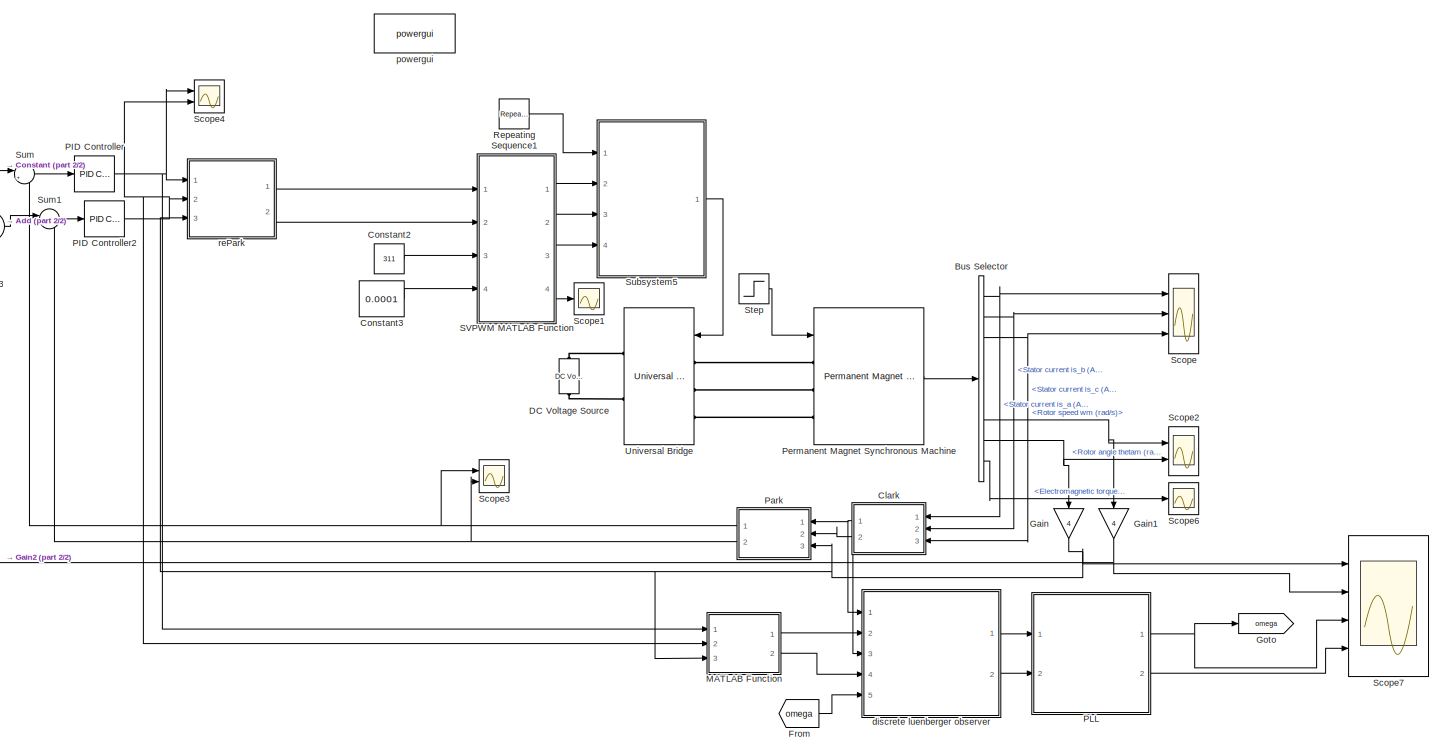
[diagram: root canvas - part 1/2, most of the canvas]
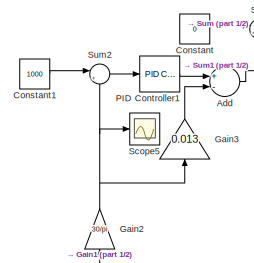
[diagram: root canvas - part 2/2, middle left region]
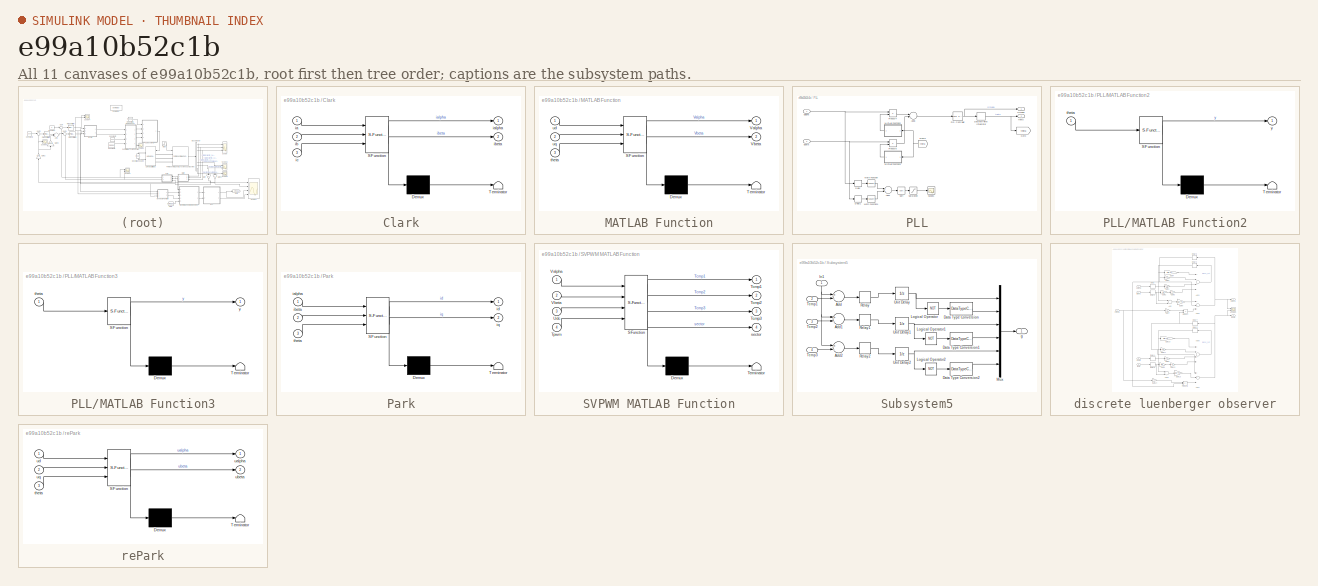
[diagram: thumbnail index - all 11 canvases of the model, root first then tree order]
MODEL slx_e99a10b52c1b
KIND model
CONFIG AbsTol = auto
CONFIG EnableMultiTasking = off
CONFIG FixedStep = auto
CONFIG InitFcn = G1=-4000;\nG2=14000;\nTs=1e-6;\nL=0.97e-3;\nR=0.958;
CONFIG MaxStep = auto
CONFIG MinStep = auto
CONFIG RelTol = 1e-4
CONFIG SampleTimeConstraint = Unconstrained
CONFIG Solver = ode23tb
CONFIG SolverName = ode23tb
CONFIG StartTime = 0.0
CONFIG StopTime = 1
BLOCK [Sum] Add
  InputSameDT = off
  Inputs = +-
  OutDataTypeStr = Inherit: Inherit via internal rule
  Ports = [2, 1]
  SaturateOnIntegerOverflow = off
BLOCK [BusSelector] Bus Selector
  OutputAsBus = off
  OutputSignals = Stator current is_a (A),Stator current is_b (A),Stator current is_c (A),Hall effect signal h_a,Hall effect signal h_b,Hall effect signal h_c,Rotor speed wm (rad/s),Rotor angle thetam (rad),Electromagnetic torque Te (N*m)
  Ports = [1, 9]
BLOCK [SubSystem] Clark
  ErrorFcn = Stateflow.Translate.translate
  PermitHierarchicalResolution = ExplicitOnly
  Ports = [3, 2]
  RequestExecContextInheritance = off
  SFBlockType = MATLAB Function
  TreatAsAtomicUnit = on
BLOCK [Demux] Clark/ Demux 
  DisplayOption = bar
  Outputs = 1
  Ports = [1, 1]
BLOCK [S-Function] Clark/ SFunction 
  EnableBusSupport = on
  FunctionName = sf_sfun
  PortCounts = [3 3]
  Ports = [3, 3]
  SFcnIsStateOwnerBlock = off
  SFunctionDeploymentMode = off
  Tag = Stateflow S-Function Luenberger_obsever2018b 5
BLOCK [Terminator] Clark/ Terminator 
BLOCK [Inport] Clark/ia
  IconDisplay = Port number
BLOCK [Outport] Clark/ialpha
  IconDisplay = Port number
  VectorParamsAs1DForOutWhenUnconnected = on
BLOCK [Inport] Clark/ib
  IconDisplay = Port number
  Port = 2
BLOCK [Outport] Clark/ibeta
  IconDisplay = Port number
  Port = 2
  VectorParamsAs1DForOutWhenUnconnected = on
BLOCK [Inport] Clark/ic
  IconDisplay = Port number
  Port = 3
BLOCK [Constant] Constant
  OutDataTypeStr = single
  Value = 0
BLOCK [Constant] Constant1
  OutDataTypeStr = single
  Value = 1000
BLOCK [Constant] Constant2
  OutDataTypeStr = single
  Value = 311
BLOCK [Constant] Constant3
  OutDataTypeStr = single
  Value = 0.0001
BLOCK [Reference] DC Voltage Source  REF=powerlib/Electrical
Sources/DC Voltage Source
  Ports = [0, 0, 0, 0, 0, 1, 1]
  SourceBlock = powerlib/Electrical\nSources/DC Voltage Source
  SourceProductBaseCode = PS
  SourceType = DC Voltage Source
BLOCK [From] From
  GotoTag = omega
BLOCK [Gain] Gain
  Gain = 4
  OutDataTypeStr = Inherit: Inherit via internal rule
  ParamDataTypeStr = Inherit: Inherit via internal rule
  SaturateOnIntegerOverflow = off
BLOCK [Gain] Gain1
  Gain = 4
  OutDataTypeStr = Inherit: Inherit via internal rule
  ParamDataTypeStr = Inherit: Inherit via internal rule
  SaturateOnIntegerOverflow = off
BLOCK [Gain] Gain2
  Gain = 30/pi
  OutDataTypeStr = Inherit: Inherit via internal rule
  ParamDataTypeStr = Inherit: Inherit via internal rule
  SaturateOnIntegerOverflow = off
BLOCK [Gain] Gain3
  Gain = 0.013
  OutDataTypeStr = Inherit: Inherit via internal rule
  ParamDataTypeStr = Inherit: Inherit via internal rule
  SaturateOnIntegerOverflow = off
BLOCK [Goto] Goto
  GotoTag = omega
BLOCK [SubSystem] MATLAB Function
  ErrorFcn = Stateflow.Translate.translate
  PermitHierarchicalResolution = ExplicitOnly
  Ports = [3, 2]
  RequestExecContextInheritance = off
  SFBlockType = MATLAB Function
  TreatAsAtomicUnit = on
BLOCK [Demux] MATLAB Function/ Demux 
  DisplayOption = bar
  Outputs = 1
  Ports = [1, 1]
BLOCK [S-Function] MATLAB Function/ SFunction 
  EnableBusSupport = on
  FunctionName = sf_sfun
  PortCounts = [3 3]
  Ports = [3, 3]
  SFcnIsStateOwnerBlock = off
  SFunctionDeploymentMode = off
  Tag = Stateflow S-Function Luenberger_obsever2018b 2
BLOCK [Terminator] MATLAB Function/ Terminator 
BLOCK [Outport] MATLAB Function/Valpha
  IconDisplay = Port number
  VectorParamsAs1DForOutWhenUnconnected = on
BLOCK [Outport] MATLAB Function/Vbeta
  IconDisplay = Port number
  Port = 2
  VectorParamsAs1DForOutWhenUnconnected = on
BLOCK [Inport] MATLAB Function/theta
  IconDisplay = Port number
  Port = 3
BLOCK [Inport] MATLAB Function/ud
  IconDisplay = Port number
BLOCK [Inport] MATLAB Function/uq
  IconDisplay = Port number
  Port = 2
BLOCK [Reference] PID Controller  REF=simulink/Continuous/PID Controller
  Ports = [1, 1]
  SourceBlock = simulink/Continuous/PID Controller
  SourceProductBaseCode = SL
  SourceType = PID 1dof
BLOCK [Reference] PID Controller1  REF=simulink/Continuous/PID Controller
  Ports = [1, 1]
  SourceBlock = simulink/Continuous/PID Controller
  SourceProductBaseCode = SL
  SourceType = PID 1dof
BLOCK [Reference] PID Controller2  REF=simulink/Continuous/PID Controller
  Ports = [1, 1]
  SourceBlock = simulink/Continuous/PID Controller
  SourceProductBaseCode = SL
  SourceType = PID 1dof
BLOCK [SubSystem] PLL
  Ports = [2, 2]
  RequestExecContextInheritance = off
BLOCK [Sum] PLL/Add4
  InputSameDT = off
  OutDataTypeStr = single
  Ports = [2, 1]
  SaturateOnIntegerOverflow = off
BLOCK [Sum] PLL/Add8
  InputSameDT = off
  Inputs = -+
  OutDataTypeStr = Inherit: Inherit via internal rule
  Ports = [2, 1]
  SaturateOnIntegerOverflow = off
BLOCK [Delay] PLL/Delay
  DelayLength = 1
  InputPortMap = u0
  InputProcessing = Columns as channels (frame based)
  Ports = [1, 1]
BLOCK [Delay] PLL/Delay1
  DelayLength = 1
  InputPortMap = u0
  InputProcessing = Columns as channels (frame based)
  Ports = [1, 1]
BLOCK [DiscreteIntegrator] PLL/Discrete-Time Integrator
  ICPrevOutput = DiscIntNeverNeededParam
  ICPrevScaledInput = DiscIntNeverNeededParam
  InitialConditionSetting = Auto
  Ports = [1, 1]
  SampleTime = -1
BLOCK [Inport] PLL/Ealpha
  IconDisplay = Port number
BLOCK [Inport] PLL/Ebeta
  IconDisplay = Port number
  Port = 2
BLOCK [From] PLL/From2
  GotoTag = theta
BLOCK [Goto] PLL/Goto
  GotoTag = theta
BLOCK [SubSystem] PLL/MATLAB Function2
  ErrorFcn = Stateflow.Translate.translate
  PermitHierarchicalResolution = ExplicitOnly
  Ports = [1, 1]
  RequestExecContextInheritance = off
  SFBlockType = MATLAB Function
  TreatAsAtomicUnit = on
BLOCK [Demux] PLL/MATLAB Function2/ Demux 
  DisplayOption = bar
  Outputs = 1
  Ports = [1, 1]
BLOCK [S-Function] PLL/MATLAB Function2/ SFunction 
  EnableBusSupport = on
  FunctionName = sf_sfun
  PortCounts = [1 2]
  Ports = [1, 2]
  SFcnIsStateOwnerBlock = off
  SFunctionDeploymentMode = off
  Tag = Stateflow S-Function Luenberger_obsever2018b 3
BLOCK [Terminator] PLL/MATLAB Function2/ Terminator 
BLOCK [Inport] PLL/MATLAB Function2/theta
  IconDisplay = Port number
BLOCK [Outport] PLL/MATLAB Function2/y
  IconDisplay = Port number
  VectorParamsAs1DForOutWhenUnconnected = on
BLOCK [SubSystem] PLL/MATLAB Function3
  ErrorFcn = Stateflow.Translate.translate
  PermitHierarchicalResolution = ExplicitOnly
  Ports = [1, 1]
  RequestExecContextInheritance = off
  SFBlockType = MATLAB Function
  TreatAsAtomicUnit = on
BLOCK [Demux] PLL/MATLAB Function3/ Demux 
  DisplayOption = bar
  Outputs = 1
  Ports = [1, 1]
BLOCK [S-Function] PLL/MATLAB Function3/ SFunction 
  EnableBusSupport = on
  FunctionName = sf_sfun
  PortCounts = [1 2]
  Ports = [1, 2]
  SFcnIsStateOwnerBlock = off
  SFunctionDeploymentMode = off
  Tag = Stateflow S-Function Luenberger_obsever2018b 4
BLOCK [Terminator] PLL/MATLAB Function3/ Terminator 
BLOCK [Inport] PLL/MATLAB Function3/theta
  IconDisplay = Port number
BLOCK [Outport] PLL/MATLAB Function3/y
  IconDisplay = Port number
  VectorParamsAs1DForOutWhenUnconnected = on
BLOCK [Math] PLL/Math Function
  Operator = square
  Ports = [1, 1]
BLOCK [Math] PLL/Math Function1
  Operator = square
  Ports = [1, 1]
BLOCK [Outport] PLL/Omega
  IconDisplay = Port number
  VectorParamsAs1DForOutWhenUnconnected = on
BLOCK [Reference] PLL/PID Controller  REF=simulink/Continuous/PID Controller
  Ports = [1, 1]
  SourceBlock = simulink/Continuous/PID Controller
  SourceProductBaseCode = SL
  SourceType = PID 1dof
BLOCK [Product] PLL/Product4
  InputSameDT = off
  OutDataTypeStr = Inherit: Inherit via internal rule
  Ports = [2, 1]
  RndMeth = Floor
  SaturateOnIntegerOverflow = off
BLOCK [Product] PLL/Product5
  InputSameDT = off
  OutDataTypeStr = Inherit: Inherit via internal rule
  Ports = [2, 1]
  RndMeth = Floor
  SaturateOnIntegerOverflow = off
BLOCK [Saturate] PLL/Saturation
  InputPortMap = u0
  LowerLimit = 0.000001
  OutDataTypeStr = Inherit: Inherit via back propagation
  Ports = [1, 1]
  UpperLimit = 24
BLOCK [Scope] PLL/Scope1
  Floating = off
  NumInputPorts = 1
  Ports = [1]
  ScopeSpecificationString = Simulink.scopes.TimeScopeBlockCfg('CurrentConfiguration', extmgr.ConfigurationSet(extmgr.Configuration('Core','General UI',true),extmgr.Configuration('Core','Source UI',true),extmgr.Configuration('Sources','WiredSimulink',true,'DataLoggingVariableName','ScopeData1'),extmgr.Configuration('Visuals','Time Domain',true,'SerializedDisplays',{struct('MinYLimReal','-0.53696','MaxYLimReal','4.83267','YLab...<+1423ch>
BLOCK [Sqrt] PLL/Sqrt
  OutDataTypeStr = single
BLOCK [Outport] PLL/theta
  IconDisplay = Port number
  Port = 2
  VectorParamsAs1DForOutWhenUnconnected = on
BLOCK [SubSystem] Park
  ErrorFcn = Stateflow.Translate.translate
  PermitHierarchicalResolution = ExplicitOnly
  Ports = [3, 2]
  RequestExecContextInheritance = off
  SFBlockType = MATLAB Function
  TreatAsAtomicUnit = on
BLOCK [Demux] Park/ Demux 
  DisplayOption = bar
  Outputs = 1
  Ports = [1, 1]
BLOCK [S-Function] Park/ SFunction 
  EnableBusSupport = on
  FunctionName = sf_sfun
  PortCounts = [3 3]
  Ports = [3, 3]
  SFcnIsStateOwnerBlock = off
  SFunctionDeploymentMode = off
  Tag = Stateflow S-Function Luenberger_obsever2018b 1
BLOCK [Terminator] Park/ Terminator 
BLOCK [Inport] Park/ialpha
  IconDisplay = Port number
BLOCK [Inport] Park/ibeta
  IconDisplay = Port number
  Port = 2
BLOCK [Outport] Park/id
  IconDisplay = Port number
  VectorParamsAs1DForOutWhenUnconnected = on
BLOCK [Outport] Park/iq
  IconDisplay = Port number
  Port = 2
  VectorParamsAs1DForOutWhenUnconnected = on
BLOCK [Inport] Park/theta
  IconDisplay = Port number
  Port = 3
BLOCK [Reference] Permanent Magnet Synchronous Machine  REF=powerlib/Machines/Permanent Magnet
Synchronous Machine
  Ports = [1, 1, 0, 0, 0, 3]
  SourceBlock = powerlib/Machines/Permanent Magnet\nSynchronous Machine
  SourceProductBaseCode = PS
  SourceType = Permanent Magnet Synchronous Machine
BLOCK [Reference] Repeating Sequence1  REF=simulink/Sources/Repeating
Sequence
  Ports = [0, 1]
  SourceBlock = simulink/Sources/Repeating\nSequence
  SourceProductBaseCode = SL
  SourceType = Repeating table
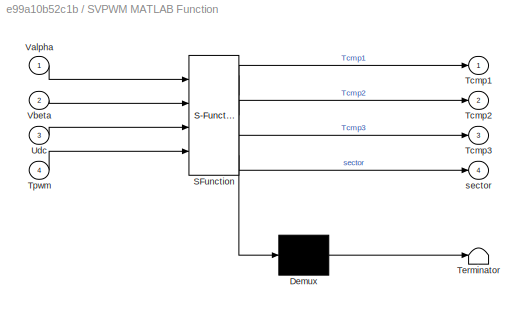
BLOCK [SubSystem] SVPWM MATLAB Function
  ErrorFcn = Stateflow.Translate.translate
  PermitHierarchicalResolution = ExplicitOnly
  Ports = [4, 4]
  RequestExecContextInheritance = off
  SFBlockType = MATLAB Function
  TreatAsAtomicUnit = on
BLOCK [Demux] SVPWM MATLAB Function/ Demux 
  DisplayOption = bar
  Outputs = 1
  Ports = [1, 1]
BLOCK [S-Function] SVPWM MATLAB Function/ SFunction 
  EnableBusSupport = on
  FunctionName = sf_sfun
  PortCounts = [4 5]
  Ports = [4, 5]
  SFcnIsStateOwnerBlock = off
  SFunctionDeploymentMode = off
  Tag = Stateflow S-Function Luenberger_obsever2018b 8
BLOCK [Terminator] SVPWM MATLAB Function/ Terminator 
BLOCK [Outport] SVPWM MATLAB Function/Tcmp1
  IconDisplay = Port number
BLOCK [Outport] SVPWM MATLAB Function/Tcmp2
  IconDisplay = Port number
  Port = 2
BLOCK [Outport] SVPWM MATLAB Function/Tcmp3
  IconDisplay = Port number
  Port = 3
BLOCK [Inport] SVPWM MATLAB Function/Tpwm
  IconDisplay = Port number
  Port = 4
BLOCK [Inport] SVPWM MATLAB Function/Udc
  IconDisplay = Port number
  Port = 3
BLOCK [Inport] SVPWM MATLAB Function/Valpha
  IconDisplay = Port number
BLOCK [Inport] SVPWM MATLAB Function/Vbeta
  IconDisplay = Port number
  Port = 2
BLOCK [Outport] SVPWM MATLAB Function/sector
  IconDisplay = Port number
  Port = 4
BLOCK [Scope] Scope
  Floating = off
  NumInputPorts = 3
  Ports = [3]
  ScopeSpecificationString = Simulink.scopes.TimeScopeBlockCfg('CurrentConfiguration', extmgr.ConfigurationSet(extmgr.Configuration('Core','General UI',true),extmgr.Configuration('Core','Source UI',true),extmgr.Configuration('Sources','WiredSimulink',true),extmgr.Configuration('Visuals','Time Domain',true,'SerializedDisplays',{struct('MinYLimReal','-26.45273','MaxYLimReal','25.61554','YLabelReal','','MinYLimMag','0.00000','Ma...<+1507ch>
BLOCK [Scope] Scope1
  Floating = off
  NumInputPorts = 1
  Ports = [1]
  ScopeSpecificationString = Simulink.scopes.TimeScopeBlockCfg('CurrentConfiguration', extmgr.ConfigurationSet(extmgr.Configuration('Core','General UI',true),extmgr.Configuration('Core','Source UI',true),extmgr.Configuration('Sources','WiredSimulink',true,'DataLoggingVariableName','ScopeData1'),extmgr.Configuration('Visuals','Time Domain',true,'SerializedDisplays',{struct('MinYLimReal','0.375','MaxYLimReal','6.625','YLabelRea...<+1444ch>
BLOCK [Scope] Scope2
  Floating = off
  NumInputPorts = 2
  Ports = [2]
  ScopeSpecificationString = Simulink.scopes.TimeScopeBlockCfg('CurrentConfiguration', extmgr.ConfigurationSet(extmgr.Configuration('Core','General UI',true),extmgr.Configuration('Core','Source UI',true),extmgr.Configuration('Sources','WiredSimulink',true,'DataLoggingVariableName','ScopeData2'),extmgr.Configuration('Visuals','Time Domain',true,'SerializedDisplays',{struct('MinYLimReal','-3.21386','MaxYLimReal','28.92476','YLa...<+1496ch>
BLOCK [Scope] Scope3
  Floating = off
  NumInputPorts = 2
  Ports = [2]
  ScopeSpecificationString = Simulink.scopes.TimeScopeBlockCfg('CurrentConfiguration', extmgr.ConfigurationSet(extmgr.Configuration('Core','General UI',true),extmgr.Configuration('Core','Source UI',true),extmgr.Configuration('Sources','WiredSimulink',true,'DataLoggingVariableName','ScopeData3'),extmgr.Configuration('Visuals','Time Domain',true,'SerializedDisplays',{struct('MinYLimReal','-7.87604','MaxYLimReal','25.93962','YLa...<+1409ch>
BLOCK [Scope] Scope4
  Floating = off
  NumInputPorts = 2
  Ports = [2]
  ScopeSpecificationString = Simulink.scopes.TimeScopeBlockCfg('CurrentConfiguration', extmgr.ConfigurationSet(extmgr.Configuration('Core','General UI',true),extmgr.Configuration('Core','Source UI',true),extmgr.Configuration('Sources','WiredSimulink',true,'DataLoggingVariableName','ScopeData4'),extmgr.Configuration('Visuals','Time Domain',true,'SerializedDisplays',{struct('MinYLimReal','-7.25949','MaxYLimReal','44.00908','YLa...<+1424ch>
BLOCK [Scope] Scope5
  Floating = off
  NumInputPorts = 1
  Ports = [1]
  ScopeSpecificationString = Simulink.scopes.TimeScopeBlockCfg('CurrentConfiguration', extmgr.ConfigurationSet(extmgr.Configuration('Core','General UI',true,'FigureColor',[1 1 1]),extmgr.Configuration('Core','Source UI',true),extmgr.Configuration('Sources','WiredSimulink',true,'DataLoggingVariableName','ScopeData5'),extmgr.Configuration('Visuals','Time Domain',true,'SerializedDisplays',{struct('MinYLimReal','-122.76049','MaxY...<+1601ch>
BLOCK [Scope] Scope6
  Floating = off
  NumInputPorts = 1
  Ports = [1]
  ScopeSpecificationString = Simulink.scopes.TimeScopeBlockCfg('CurrentConfiguration', extmgr.ConfigurationSet(extmgr.Configuration('Core','General UI',true),extmgr.Configuration('Core','Source UI',true),extmgr.Configuration('Sources','WiredSimulink',true,'DataLoggingVariableName','ScopeData6'),extmgr.Configuration('Visuals','Time Domain',true,'SerializedDisplays',{struct('MinYLimReal','-8.63372','MaxYLimReal','28.43501','YLa...<+1425ch>
BLOCK [Scope] Scope7
  Floating = off
  NumInputPorts = 4
  Ports = [4]
  ScopeSpecificationString = Simulink.scopes.TimeScopeBlockCfg('CurrentConfiguration', extmgr.ConfigurationSet(extmgr.Configuration('Core','General UI',true,'FigureColor',[1 1 1]),extmgr.Configuration('Core','Source UI',true),extmgr.Configuration('Sources','WiredSimulink',true,'DataLoggingVariableName','ScopeData1'),extmgr.Configuration('Visuals','Time Domain',true,'SerializedDisplays',{struct('MinYLimReal','-38.47417','MaxYL...<+1915ch>
BLOCK [Step] Step
  After = 20
  SampleTime = 0
  Time = 0.2
BLOCK [SubSystem] Subsystem5
  Ports = [4, 1]
  RequestExecContextInheritance = off
BLOCK [Sum] Subsystem5/Add
  InputSameDT = off
  Inputs = +-
  OutDataTypeStr = Inherit: Inherit via internal rule
  Ports = [2, 1]
  SaturateOnIntegerOverflow = off
BLOCK [Sum] Subsystem5/Add1
  InputSameDT = off
  Inputs = +-
  OutDataTypeStr = Inherit: Inherit via internal rule
  Ports = [2, 1]
  SaturateOnIntegerOverflow = off
BLOCK [Sum] Subsystem5/Add2
  InputSameDT = off
  Inputs = +-
  OutDataTypeStr = Inherit: Inherit via internal rule
  Ports = [2, 1]
  SaturateOnIntegerOverflow = off
BLOCK [DataTypeConversion] Subsystem5/Data Type Conversion
  OutDataTypeStr = double
  RndMeth = Floor
  SaturateOnIntegerOverflow = off
BLOCK [DataTypeConversion] Subsystem5/Data Type Conversion1
  OutDataTypeStr = double
  RndMeth = Floor
  SaturateOnIntegerOverflow = off
BLOCK [DataTypeConversion] Subsystem5/Data Type Conversion2
  OutDataTypeStr = double
  RndMeth = Floor
  SaturateOnIntegerOverflow = off
BLOCK [Inport] Subsystem5/In1
  IconDisplay = Port number
BLOCK [Logic] Subsystem5/Logical Operator
  AllPortsSameDT = off
  Operator = NOT
  OutDataTypeStr = boolean
  Ports = [1, 1]
BLOCK [Logic] Subsystem5/Logical Operator1
  AllPortsSameDT = off
  Operator = NOT
  OutDataTypeStr = boolean
  Ports = [1, 1]
BLOCK [Logic] Subsystem5/Logical Operator2
  AllPortsSameDT = off
  Operator = NOT
  OutDataTypeStr = boolean
  Ports = [1, 1]
BLOCK [Mux] Subsystem5/Mux
  DisplayOption = bar
  Inputs = 6
  Ports = [6, 1]
BLOCK [Relay] Subsystem5/Relay
  InputProcessing = Elements as channels (sample based)
  OffSwitchValue = -eps
BLOCK [Relay] Subsystem5/Relay1
  InputProcessing = Elements as channels (sample based)
  OffSwitchValue = -eps
BLOCK [Relay] Subsystem5/Relay2
  InputProcessing = Elements as channels (sample based)
  OffSwitchValue = -eps
BLOCK [Inport] Subsystem5/Tcmp1
  IconDisplay = Port number
  Port = 2
BLOCK [Inport] Subsystem5/Tcmp2
  IconDisplay = Port number
  Port = 3
BLOCK [Inport] Subsystem5/Tcmp3
  IconDisplay = Port number
  Port = 4
BLOCK [UnitDelay] Subsystem5/Unit Delay
  InputProcessing = Elements as channels (sample based)
  SampleTime = -1
BLOCK [UnitDelay] Subsystem5/Unit Delay1
  InputProcessing = Elements as channels (sample based)
  SampleTime = -1
BLOCK [UnitDelay] Subsystem5/Unit Delay2
  InputProcessing = Elements as channels (sample based)
  SampleTime = -1
BLOCK [Outport] Subsystem5/g
  IconDisplay = Port number
BLOCK [Sum] Sum
  IconShape = round
  InputSameDT = off
  Inputs = |+-
  OutDataTypeStr = Inherit: Inherit via internal rule
  Ports = [2, 1]
  SaturateOnIntegerOverflow = off
BLOCK [Sum] Sum1
  IconShape = round
  InputSameDT = off
  Inputs = |+-
  OutDataTypeStr = Inherit: Inherit via internal rule
  Ports = [2, 1]
  SaturateOnIntegerOverflow = off
BLOCK [Sum] Sum2
  IconShape = round
  InputSameDT = off
  Inputs = |+-
  OutDataTypeStr = Inherit: Inherit via internal rule
  Ports = [2, 1]
  SaturateOnIntegerOverflow = off
BLOCK [Reference] Universal Bridge  REF=powerlib/Power
Electronics/Universal Bridge
  Ports = [1, 0, 0, 0, 0, 3, 2]
  SourceBlock = powerlib/Power\nElectronics/Universal Bridge
  SourceProductBaseCode = PS
  SourceType = Universal Bridge
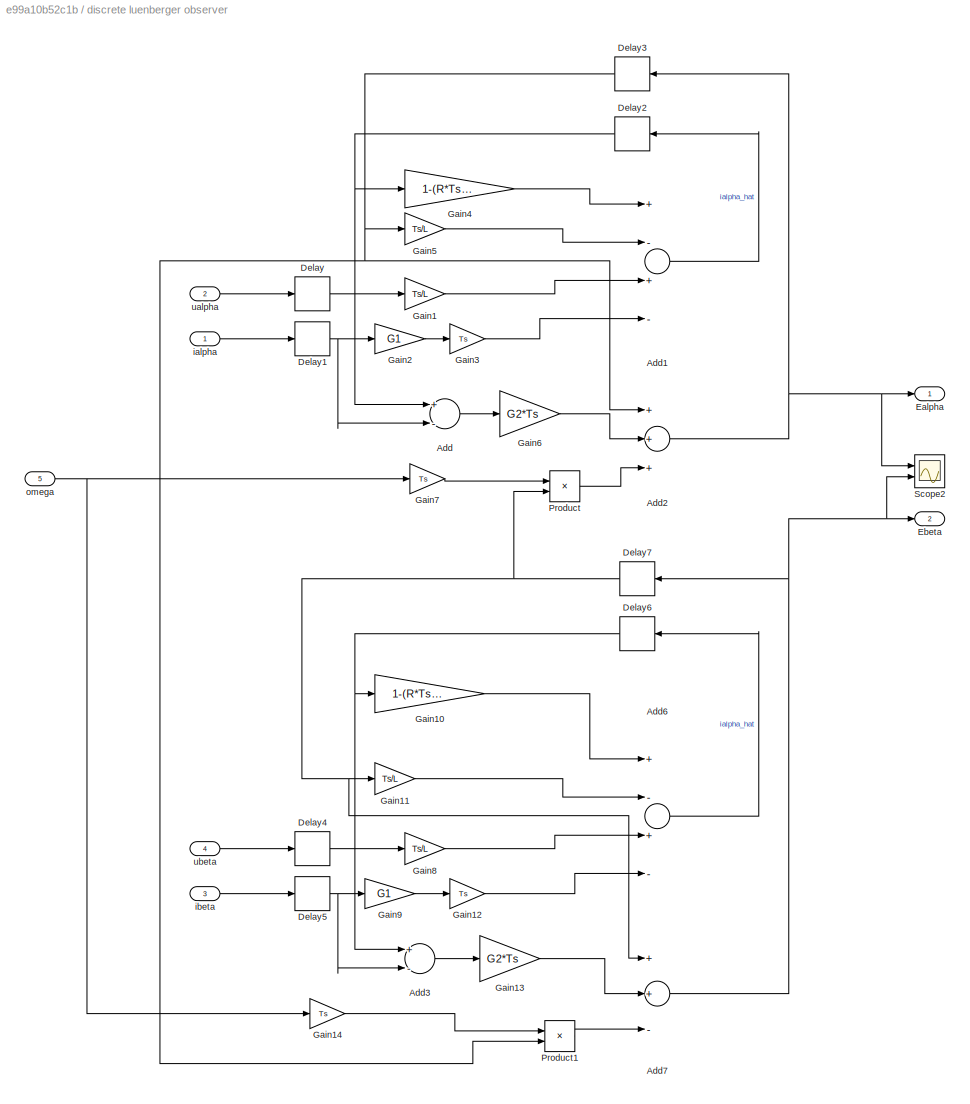
BLOCK [SubSystem] discrete luenberger observer
  Ports = [5, 2]
  RequestExecContextInheritance = off
BLOCK [Sum] discrete luenberger observer/Add
  InputSameDT = off
  Inputs = +-
  OutDataTypeStr = Inherit: Inherit via internal rule
  Ports = [2, 1]
  SaturateOnIntegerOverflow = off
BLOCK [Sum] discrete luenberger observer/Add1
  InputSameDT = off
  Inputs = +-+-
  OutDataTypeStr = Inherit: Inherit via internal rule
  Ports = [4, 1]
  SaturateOnIntegerOverflow = off
BLOCK [Sum] discrete luenberger observer/Add2
  InputSameDT = off
  Inputs = +++
  OutDataTypeStr = Inherit: Inherit via internal rule
  Ports = [3, 1]
  SaturateOnIntegerOverflow = off
BLOCK [Sum] discrete luenberger observer/Add3
  InputSameDT = off
  Inputs = +-
  OutDataTypeStr = Inherit: Inherit via internal rule
  Ports = [2, 1]
  SaturateOnIntegerOverflow = off
BLOCK [Sum] discrete luenberger observer/Add6
  InputSameDT = off
  Inputs = +-+-
  OutDataTypeStr = Inherit: Inherit via internal rule
  Ports = [4, 1]
  SaturateOnIntegerOverflow = off
BLOCK [Sum] discrete luenberger observer/Add7
  InputSameDT = off
  Inputs = ++-
  OutDataTypeStr = Inherit: Inherit via internal rule
  Ports = [3, 1]
  SaturateOnIntegerOverflow = off
BLOCK [Delay] discrete luenberger observer/Delay
  DelayLength = 1
  InputPortMap = u0
  Ports = [1, 1]
BLOCK [Delay] discrete luenberger observer/Delay1
  DelayLength = 1
  InputPortMap = u0
  Ports = [1, 1]
BLOCK [Delay] discrete luenberger observer/Delay2
  DelayLength = 1
  InputPortMap = u0
  Ports = [1, 1]
BLOCK [Delay] discrete luenberger observer/Delay3
  DelayLength = 1
  InputPortMap = u0
  Ports = [1, 1]
BLOCK [Delay] discrete luenberger observer/Delay4
  DelayLength = 1
  InputPortMap = u0
  Ports = [1, 1]
BLOCK [Delay] discrete luenberger observer/Delay5
  DelayLength = 1
  InputPortMap = u0
  Ports = [1, 1]
BLOCK [Delay] discrete luenberger observer/Delay6
  DelayLength = 1
  InputPortMap = u0
  Ports = [1, 1]
BLOCK [Delay] discrete luenberger observer/Delay7
  DelayLength = 1
  InputPortMap = u0
  Ports = [1, 1]
BLOCK [Outport] discrete luenberger observer/Ealpha
  IconDisplay = Port number
  VectorParamsAs1DForOutWhenUnconnected = on
BLOCK [Outport] discrete luenberger observer/Ebeta
  IconDisplay = Port number
  Port = 2
  VectorParamsAs1DForOutWhenUnconnected = on
BLOCK [Gain] discrete luenberger observer/Gain1
  Gain = Ts/L
  OutDataTypeStr = Inherit: Inherit via internal rule
  ParamDataTypeStr = Inherit: Inherit via internal rule
  SaturateOnIntegerOverflow = off
BLOCK [Gain] discrete luenberger observer/Gain10
  Gain = 1-(R*Ts/L)+G1*Ts
  OutDataTypeStr = Inherit: Inherit via internal rule
  ParamDataTypeStr = Inherit: Inherit via internal rule
  SaturateOnIntegerOverflow = off
BLOCK [Gain] discrete luenberger observer/Gain11
  Gain = Ts/L
  OutDataTypeStr = Inherit: Inherit via internal rule
  ParamDataTypeStr = Inherit: Inherit via internal rule
  SaturateOnIntegerOverflow = off
BLOCK [Gain] discrete luenberger observer/Gain12
  Gain = Ts
  OutDataTypeStr = Inherit: Inherit via internal rule
  ParamDataTypeStr = Inherit: Inherit via internal rule
  SaturateOnIntegerOverflow = off
BLOCK [Gain] discrete luenberger observer/Gain13
  Gain = G2*Ts
  OutDataTypeStr = Inherit: Inherit via internal rule
  ParamDataTypeStr = Inherit: Inherit via internal rule
  SaturateOnIntegerOverflow = off
BLOCK [Gain] discrete luenberger observer/Gain14
  Gain = Ts
  OutDataTypeStr = Inherit: Inherit via internal rule
  ParamDataTypeStr = Inherit: Inherit via internal rule
  SaturateOnIntegerOverflow = off
BLOCK [Gain] discrete luenberger observer/Gain2
  Gain = G1
  OutDataTypeStr = Inherit: Inherit via internal rule
  ParamDataTypeStr = Inherit: Inherit via internal rule
  SaturateOnIntegerOverflow = off
BLOCK [Gain] discrete luenberger observer/Gain3
  Gain = Ts
  OutDataTypeStr = Inherit: Inherit via internal rule
  ParamDataTypeStr = Inherit: Inherit via internal rule
  SaturateOnIntegerOverflow = off
BLOCK [Gain] discrete luenberger observer/Gain4
  Gain = 1-(R*Ts/L)+G1*Ts
  OutDataTypeStr = Inherit: Inherit via internal rule
  ParamDataTypeStr = Inherit: Inherit via internal rule
  SaturateOnIntegerOverflow = off
BLOCK [Gain] discrete luenberger observer/Gain5
  Gain = Ts/L
  OutDataTypeStr = Inherit: Inherit via internal rule
  ParamDataTypeStr = Inherit: Inherit via internal rule
  SaturateOnIntegerOverflow = off
BLOCK [Gain] discrete luenberger observer/Gain6
  Gain = G2*Ts
  OutDataTypeStr = Inherit: Inherit via internal rule
  ParamDataTypeStr = Inherit: Inherit via internal rule
  SaturateOnIntegerOverflow = off
BLOCK [Gain] discrete luenberger observer/Gain7
  Gain = Ts
  OutDataTypeStr = Inherit: Inherit via internal rule
  ParamDataTypeStr = Inherit: Inherit via internal rule
  SaturateOnIntegerOverflow = off
BLOCK [Gain] discrete luenberger observer/Gain8
  Gain = Ts/L
  OutDataTypeStr = Inherit: Inherit via internal rule
  ParamDataTypeStr = Inherit: Inherit via internal rule
  SaturateOnIntegerOverflow = off
BLOCK [Gain] discrete luenberger observer/Gain9
  Gain = G1
  OutDataTypeStr = Inherit: Inherit via internal rule
  ParamDataTypeStr = Inherit: Inherit via internal rule
  SaturateOnIntegerOverflow = off
BLOCK [Product] discrete luenberger observer/Product
  InputSameDT = off
  OutDataTypeStr = Inherit: Inherit via internal rule
  Ports = [2, 1]
  RndMeth = Floor
  SaturateOnIntegerOverflow = off
BLOCK [Product] discrete luenberger observer/Product1
  InputSameDT = off
  OutDataTypeStr = Inherit: Inherit via internal rule
  Ports = [2, 1]
  RndMeth = Floor
  SaturateOnIntegerOverflow = off
BLOCK [Scope] discrete luenberger observer/Scope2
  Floating = off
  NumInputPorts = 2
  Ports = [2]
  ScopeSpecificationString = Simulink.scopes.TimeScopeBlockCfg('CurrentConfiguration', extmgr.ConfigurationSet(extmgr.Configuration('Core','General UI',true),extmgr.Configuration('Core','Source UI',true),extmgr.Configuration('Sources','WiredSimulink',true,'DataLoggingVariableName','ScopeData2'),extmgr.Configuration('Visuals','Time Domain',true,'SerializedDisplays',{struct('MinYLimReal','-5.87987','MaxYLimReal','5.88213','YLab...<+1475ch>
BLOCK [Inport] discrete luenberger observer/ialpha
  IconDisplay = Port number
BLOCK [Inport] discrete luenberger observer/ibeta
  IconDisplay = Port number
  Port = 3
BLOCK [Inport] discrete luenberger observer/omega
  IconDisplay = Port number
  Port = 5
BLOCK [Inport] discrete luenberger observer/ualpha
  IconDisplay = Port number
  Port = 2
BLOCK [Inport] discrete luenberger observer/ubeta
  IconDisplay = Port number
  Port = 4
BLOCK [Reference] powergui  REF=powerlib/powergui
  Ports = []
  Priority = 1
  SourceBlock = powerlib/powergui
  SourceProductBaseCode = PS
  SourceProductName = Simscape Power Systems
  SourceType = PSB option menu block
BLOCK [SubSystem] rePark
  ErrorFcn = Stateflow.Translate.translate
  PermitHierarchicalResolution = ExplicitOnly
  Ports = [3, 2]
  RequestExecContextInheritance = off
  SFBlockType = MATLAB Function
  TreatAsAtomicUnit = on
BLOCK [Demux] rePark/ Demux 
  DisplayOption = bar
  Outputs = 1
  Ports = [1, 1]
BLOCK [S-Function] rePark/ SFunction 
  EnableBusSupport = on
  FunctionName = sf_sfun
  PortCounts = [3 3]
  Ports = [3, 3]
  SFcnIsStateOwnerBlock = off
  SFunctionDeploymentMode = off
  Tag = Stateflow S-Function Luenberger_obsever2018b 7
BLOCK [Terminator] rePark/ Terminator 
BLOCK [Inport] rePark/theta
  IconDisplay = Port number
  Port = 3
BLOCK [Outport] rePark/ualpha
  IconDisplay = Port number
  VectorParamsAs1DForOutWhenUnconnected = on
BLOCK [Outport] rePark/ubeta
  IconDisplay = Port number
  Port = 2
  VectorParamsAs1DForOutWhenUnconnected = on
BLOCK [Inport] rePark/ud
  IconDisplay = Port number
BLOCK [Inport] rePark/uq
  IconDisplay = Port number
  Port = 2
LINE Add:1 -> Sum1:1
NET Bus Selector:1 -> Clark:1, Scope:1
NET Bus Selector:2 -> Clark:2, Scope:2
NET Bus Selector:3 -> Clark:3, Scope:3
NET Bus Selector:7 -> Gain1:1, Scope2:1
NET Bus Selector:8 -> Gain:1, Scope2:2
LINE Bus Selector:9 -> Scope6:1
NET Clark:1 -> Park:1, discrete luenberger observer:1
NET Clark:2 -> Park:2, discrete luenberger observer:3
LINE Constant1:1 -> Sum2:1
LINE Constant2:1 -> SVPWM MATLAB Function:3
LINE Constant3:1 -> SVPWM MATLAB Function:4
LINE Constant:1 -> Sum:1
LINE From:1 -> discrete luenberger observer:5
NET Gain1:1 -> Gain2:1, Scope7:2
NET Gain2:1 -> Gain3:1, Scope5:1, Sum2:2
LINE Gain3:1 -> Add:2
NET Gain:1 -> MATLAB Function:3, Park:3, Scope7:1, rePark:3
LINE MATLAB Function:1 -> discrete luenberger observer:2
LINE MATLAB Function:2 -> discrete luenberger observer:4
LINE PID Controller1:1 -> Add:1
NET PID Controller2:1 -> MATLAB Function:2, Scope4:2, rePark:2
NET PID Controller:1 -> MATLAB Function:1, Scope4:1, rePark:1
LINE PLL/Add4:1 -> PLL/Sqrt:1
LINE PLL/Add8:1 -> PLL/PID Controller:1
LINE PLL/Delay1:1 -> PLL/Math Function1:1
LINE PLL/Delay:1 -> PLL/Math Function:1
NET PLL/Discrete-Time Integrator:1 -> PLL/Goto:1, PLL/theta:1
NET PLL/Ealpha:1 -> PLL/Delay:1, PLL/Product4:1
NET PLL/Ebeta:1 -> PLL/Delay1:1, PLL/Product5:1
NET PLL/From2:1 -> PLL/MATLAB Function2:1, PLL/MATLAB Function3:1
LINE PLL/MATLAB Function2:1 -> PLL/Product4:2
LINE PLL/MATLAB Function3:1 -> PLL/Product5:2
LINE PLL/Math Function1:1 -> PLL/Add4:2
LINE PLL/Math Function:1 -> PLL/Add4:1
NET PLL/PID Controller:1 -> PLL/Discrete-Time Integrator:1, PLL/Omega:1
LINE PLL/Product4:1 -> PLL/Add8:1
LINE PLL/Product5:1 -> PLL/Add8:2
LINE PLL/Saturation:1 -> PLL/Scope1:1
LINE PLL/Sqrt:1 -> PLL/Saturation:1
NET PLL:1 -> Goto:1, Scope7:3
LINE PLL:2 -> Scope7:4
NET Park:1 -> Scope3:1, Sum:2
NET Park:2 -> Scope3:2, Sum1:2
LINE Permanent Magnet Synchronous Machine:1 -> Bus Selector:1
LINE Repeating Sequence1:1 -> Subsystem5:1
LINE SVPWM MATLAB Function:1 -> Subsystem5:2
LINE SVPWM MATLAB Function:2 -> Subsystem5:3
LINE SVPWM MATLAB Function:3 -> Subsystem5:4
LINE SVPWM MATLAB Function:4 -> Scope1:1
LINE Step:1 -> Permanent Magnet Synchronous Machine:1
LINE Subsystem5/Add1:1 -> Subsystem5/Relay1:1
LINE Subsystem5/Add2:1 -> Subsystem5/Relay2:1
LINE Subsystem5/Add:1 -> Subsystem5/Relay:1
LINE Subsystem5/Data Type Conversion1:1 -> Subsystem5/Mux:4
LINE Subsystem5/Data Type Conversion2:1 -> Subsystem5/Mux:6
LINE Subsystem5/Data Type Conversion:1 -> Subsystem5/Mux:2
NET Subsystem5/In1:1 -> Subsystem5/Add1:1, Subsystem5/Add2:1, Subsystem5/Add:1
LINE Subsystem5/Logical Operator1:1 -> Subsystem5/Data Type Conversion1:1
LINE Subsystem5/Logical Operator2:1 -> Subsystem5/Data Type Conversion2:1
LINE Subsystem5/Logical Operator:1 -> Subsystem5/Data Type Conversion:1
LINE Subsystem5/Mux:1 -> Subsystem5/g:1
LINE Subsystem5/Relay1:1 -> Subsystem5/Unit Delay1:1
LINE Subsystem5/Relay2:1 -> Subsystem5/Unit Delay2:1
LINE Subsystem5/Relay:1 -> Subsystem5/Unit Delay:1
LINE Subsystem5/Tcmp1:1 -> Subsystem5/Add:2
LINE Subsystem5/Tcmp2:1 -> Subsystem5/Add1:2
LINE Subsystem5/Tcmp3:1 -> Subsystem5/Add2:2
NET Subsystem5/Unit Delay1:1 -> Subsystem5/Logical Operator1:1, Subsystem5/Mux:3
NET Subsystem5/Unit Delay2:1 -> Subsystem5/Logical Operator2:1, Subsystem5/Mux:5
NET Subsystem5/Unit Delay:1 -> Subsystem5/Logical Operator:1, Subsystem5/Mux:1
LINE Subsystem5:1 -> Universal Bridge:1
LINE Sum1:1 -> PID Controller2:1
LINE Sum2:1 -> PID Controller1:1
LINE Sum:1 -> PID Controller:1
LINE discrete luenberger observer/Add1:1 -> discrete luenberger observer/Delay2:1
NET discrete luenberger observer/Add2:1 -> discrete luenberger observer/Delay3:1, discrete luenberger observer/Ealpha:1, discrete luenberger observer/Scope2:1
LINE discrete luenberger observer/Add3:1 -> discrete luenberger observer/Gain13:1
LINE discrete luenberger observer/Add6:1 -> discrete luenberger observer/Delay6:1
NET discrete luenberger observer/Add7:1 -> discrete luenberger observer/Delay7:1, discrete luenberger observer/Ebeta:1, discrete luenberger observer/Scope2:2
LINE discrete luenberger observer/Add:1 -> discrete luenberger observer/Gain6:1
NET discrete luenberger observer/Delay1:1 -> discrete luenberger observer/Add:2, discrete luenberger observer/Gain2:1
NET discrete luenberger observer/Delay2:1 -> discrete luenberger observer/Add:1, discrete luenberger observer/Gain4:1
NET discrete luenberger observer/Delay3:1 -> discrete luenberger observer/Add2:1, discrete luenberger observer/Gain5:1, discrete luenberger observer/Product1:2
LINE discrete luenberger observer/Delay4:1 -> discrete luenberger observer/Gain8:1
NET discrete luenberger observer/Delay5:1 -> discrete luenberger observer/Add3:2, discrete luenberger observer/Gain9:1
NET discrete luenberger observer/Delay6:1 -> discrete luenberger observer/Add3:1, discrete luenberger observer/Gain10:1
NET discrete luenberger observer/Delay7:1 -> discrete luenberger observer/Add7:1, discrete luenberger observer/Gain11:1, discrete luenberger observer/Product:2
LINE discrete luenberger observer/Delay:1 -> discrete luenberger observer/Gain1:1
LINE discrete luenberger observer/Gain10:1 -> discrete luenberger observer/Add6:1
LINE discrete luenberger observer/Gain11:1 -> discrete luenberger observer/Add6:2
LINE discrete luenberger observer/Gain12:1 -> discrete luenberger observer/Add6:4
LINE discrete luenberger observer/Gain13:1 -> discrete luenberger observer/Add7:2
LINE discrete luenberger observer/Gain14:1 -> discrete luenberger observer/Product1:1
LINE discrete luenberger observer/Gain1:1 -> discrete luenberger observer/Add1:3
LINE discrete luenberger observer/Gain2:1 -> discrete luenberger observer/Gain3:1
LINE discrete luenberger observer/Gain3:1 -> discrete luenberger observer/Add1:4
LINE discrete luenberger observer/Gain4:1 -> discrete luenberger observer/Add1:1
LINE discrete luenberger observer/Gain5:1 -> discrete luenberger observer/Add1:2
LINE discrete luenberger observer/Gain6:1 -> discrete luenberger observer/Add2:2
LINE discrete luenberger observer/Gain7:1 -> discrete luenberger observer/Product:1
LINE discrete luenberger observer/Gain8:1 -> discrete luenberger observer/Add6:3
LINE discrete luenberger observer/Gain9:1 -> discrete luenberger observer/Gain12:1
LINE discrete luenberger observer/Product1:1 -> discrete luenberger observer/Add7:3
LINE discrete luenberger observer/Product:1 -> discrete luenberger observer/Add2:3
LINE discrete luenberger observer/ialpha:1 -> discrete luenberger observer/Delay1:1
LINE discrete luenberger observer/ibeta:1 -> discrete luenberger observer/Delay5:1
NET discrete luenberger observer/omega:1 -> discrete luenberger observer/Gain14:1, discrete luenberger observer/Gain7:1
LINE discrete luenberger observer/ualpha:1 -> discrete luenberger observer/Delay:1
LINE discrete luenberger observer/ubeta:1 -> discrete luenberger observer/Delay4:1
LINE discrete luenberger observer:1 -> PLL:1
LINE discrete luenberger observer:2 -> PLL:2
LINE rePark:1 -> SVPWM MATLAB Function:1
LINE rePark:2 -> SVPWM MATLAB Function:2
PLINE DC Voltage Source:LConn1 -- Universal Bridge:RConn2
PLINE DC Voltage Source:RConn1 -- Universal Bridge:RConn1
PLINE Permanent Magnet Synchronous Machine:LConn1 -- Universal Bridge:LConn1
PLINE Permanent Magnet Synchronous Machine:LConn2 -- Universal Bridge:LConn2
PLINE Permanent Magnet Synchronous Machine:LConn3 -- Universal Bridge:LConn3
note: NET lines group one-source signal fan-out (src -> all destinations, sorted); 1:1 wires keep LINE
CHART Park states=1 transitions=1
  STATE_LABEL 'eML_blk_kernel()'
  STATE_LABEL 'SCRIPT:\nfunction [id,iq] = fcn(ialpha,ibeta,theta)\nid = ialpha*cos(theta)+ibeta*sin(theta);\niq = -ialpha*sin(theta)+ibeta*cos(theta);\n\n'
CHART MATLAB Function states=1 transitions=1
  STATE_LABEL 'eML_blk_kernel()'
  STATE_LABEL 'SCRIPT:\nfunction [Valpha,Vbeta] = fcn(ud,uq,theta)\nValpha = ud*cos(theta) - uq*sin(theta);\nVbeta = ud*sin(theta) + uq*cos(theta);\n\n'
CHART PLL/MATLAB Function2 states=1 transitions=1
  STATE_LABEL 'eML_blk_kernel()'
  STATE_LABEL 'SCRIPT:\nfunction y = fcn(theta)\n\ny = sin(theta);\n'
CHART PLL/MATLAB Function3 states=1 transitions=1
  STATE_LABEL 'eML_blk_kernel()'
  STATE_LABEL 'SCRIPT:\nfunction y = fcn(theta)\n\ny = cos(theta);\n'
CHART Clark states=1 transitions=1
  STATE_LABEL 'eML_blk_kernel()'
  STATE_LABEL 'SCRIPT:\nfunction [ialpha,ibeta] = fcn(ia,ib,ic)\nialpha = ia*2/3-(ib+ic)/3;\nibeta = (ib-ic)*sqrt(3)/3;\n'
CHART rePark states=1 transitions=1
  STATE_LABEL 'eML_blk_kernel()'
  STATE_LABEL 'SCRIPT:\nfunction [ualpha,ubeta] = fcn(ud,uq,theta)\nualpha = ud*cos(theta) - uq*sin(theta);\nubeta = ud*sin(theta) + uq*cos(theta);\n\n'
CHART SVPWM
MATLAB Function states=1 transitions=1
  STATE_LABEL 'eML_blk_kernel()'
  STATE_LABEL 'SCRIPT:\nfunction [Tcmp1,Tcmp2,Tcmp3,sector] = fcn(Valpha,Vbeta,Udc,Tpwm)\n%#codegen\n\nsector = single(0);\nTcmp1 = single(0);\nTcmp2 = single(0);\nTcmp3 = single(0);\n\n%========Parameters statement================\n\n    Vref1 = Vbeta;\t\t\t\t\t\t\t                   \n    Vref2 = (sqrt(3)*Valpha - Vbeta)/2; \t\t\t\t    \n    Vref3 = (-sqrt(3)*Valpha - Vbeta)/2;\t\t\t\t\t\n   \n %========Sector calculation=================\n\n...<+1269ch>'
